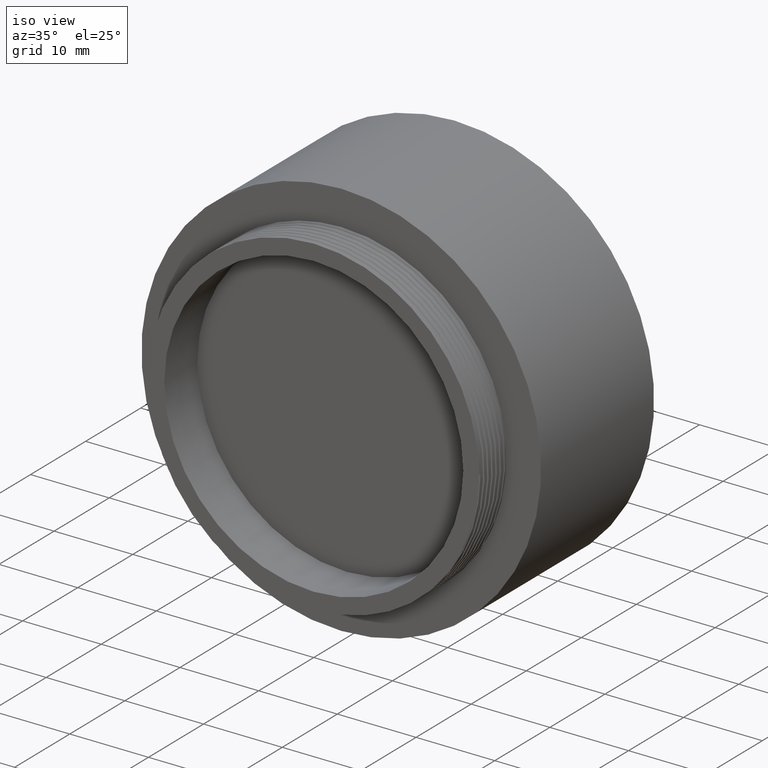
[diagram: clean part render]
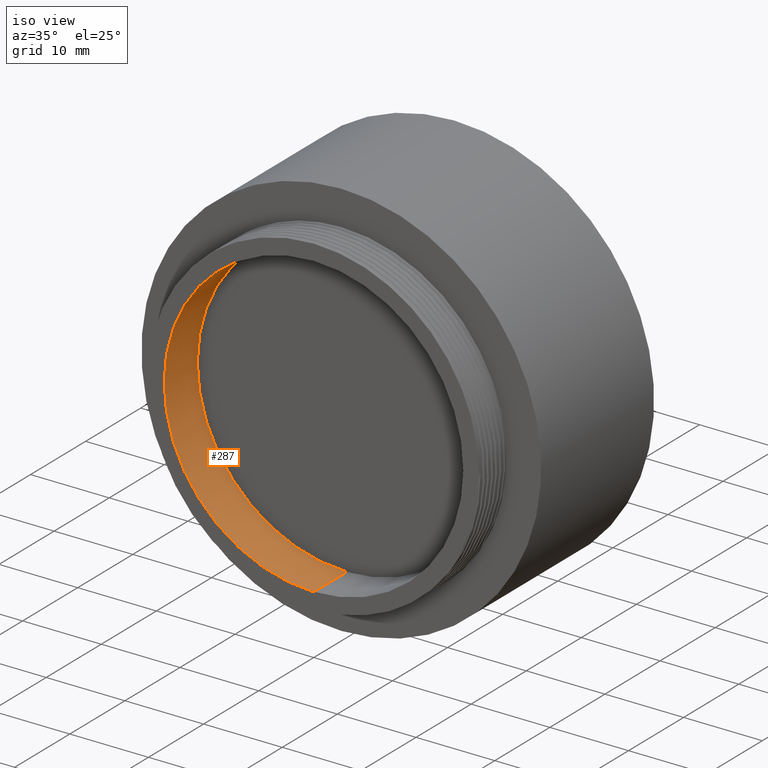
[diagram: same view with one face highlighted and labeled with its STEP entity id]
A machine part, iso view. The second image highlights one B-rep face of the part: STEP entity #287.
In plain terms, the highlighted cylindrical surface (partial cylindrical patch) has radius 19 mm, axis along (-0, -1, -0).
Its self-contained STEP definition (entity closure, byte-faithful):
#123 = EDGE_LOOP ( 'NONE', ( #6585, #6064, #4765, #1011 ) ) ;
#183 = FACE_OUTER_BOUND ( 'NONE', #123, .T. ) ;
#224 = CARTESIAN_POINT ( 'NONE',  ( 0.000000000000000000, 6.000000000000000000, -19.00000000000000000 ) ) ;
#287 = ADVANCED_FACE ( 'NONE', ( #183 ), #4665, .F. ) ;
#336 = EDGE_CURVE ( 'NONE', #5151, #6664, #684, .T. ) ;
#528 = CARTESIAN_POINT ( 'NONE',  ( 2.326828918379970970E-15, 0.000000000000000000, 19.00000000000000000 ) ) ;
#592 = DIRECTION ( 'NONE',  ( -0.000000000000000000, -1.000000000000000000, -0.000000000000000000 ) ) ;
#643 = CARTESIAN_POINT ( 'NONE',  ( 0.000000000000000000, 5.817072295949926440E-16, -19.00000000000000000 ) ) ;
#662 = DIRECTION ( 'NONE',  ( 0.000000000000000000, 0.000000000000000000, -1.000000000000000000 ) ) ;
#664 = DIRECTION ( 'NONE',  ( -0.000000000000000000, -1.000000000000000000, -0.000000000000000000 ) ) ;
#684 = LINE ( 'NONE', #2750, #6417 ) ;
#1011 = ORIENTED_EDGE ( 'NONE', *, *, #336, .F. ) ;
#1036 = AXIS2_PLACEMENT_3D ( 'NONE', #6229, #1177, #4226 ) ;
#1146 = LINE ( 'NONE', #528, #2003 ) ;
#1177 = DIRECTION ( 'NONE',  ( -0.000000000000000000, -1.000000000000000000, -0.000000000000000000 ) ) ;
#1390 = VERTEX_POINT ( 'NONE', #3403 ) ;
#1460 = AXIS2_PLACEMENT_3D ( 'NONE', #6240, #664, #5727 ) ;
#1781 = EDGE_CURVE ( 'NONE', #4124, #1390, #1146, .T. ) ;
#2003 = VECTOR ( 'NONE', #592, 1000.000000000000000 ) ;
#2750 = CARTESIAN_POINT ( 'NONE',  ( 0.000000000000000000, 0.000000000000000000, -19.00000000000000000 ) ) ;
#2970 = CIRCLE ( 'NONE', #1460, 19.00000000000000000 ) ;
#3287 = CIRCLE ( 'NONE', #4032, 19.00000000000000000 ) ;
#3403 = CARTESIAN_POINT ( 'NONE',  ( 2.326828918379970970E-15, 5.817072295949926440E-16, 19.00000000000000000 ) ) ;
#4032 = AXIS2_PLACEMENT_3D ( 'NONE', #4167, #4233, #662 ) ;
#4066 = CARTESIAN_POINT ( 'NONE',  ( 2.326828918379970970E-15, 6.000000000000000000, 19.00000000000000000 ) ) ;
#4124 = VERTEX_POINT ( 'NONE', #4066 ) ;
#4167 = CARTESIAN_POINT ( 'NONE',  ( 0.000000000000000000, 5.817072295949926440E-16, 0.000000000000000000 ) ) ;
#4226 = DIRECTION ( 'NONE',  ( 0.000000000000000000, 0.000000000000000000, -1.000000000000000000 ) ) ;
#4233 = DIRECTION ( 'NONE',  ( -0.000000000000000000, -1.000000000000000000, -0.000000000000000000 ) ) ;
#4497 = EDGE_CURVE ( 'NONE', #1390, #6664, #3287, .T. ) ;
#4665 = CYLINDRICAL_SURFACE ( 'NONE', #1036, 19.00000000000000000 ) ;
#4765 = ORIENTED_EDGE ( 'NONE', *, *, #4497, .T. ) ;
#5072 = EDGE_CURVE ( 'NONE', #4124, #5151, #2970, .T. ) ;
#5151 = VERTEX_POINT ( 'NONE', #224 ) ;
#5727 = DIRECTION ( 'NONE',  ( 0.000000000000000000, 0.000000000000000000, -1.000000000000000000 ) ) ;
#6064 = ORIENTED_EDGE ( 'NONE', *, *, #1781, .T. ) ;
#6229 = CARTESIAN_POINT ( 'NONE',  ( 0.000000000000000000, 0.000000000000000000, 0.000000000000000000 ) ) ;
#6240 = CARTESIAN_POINT ( 'NONE',  ( 0.000000000000000000, 6.000000000000000000, 0.000000000000000000 ) ) ;
#6259 = DIRECTION ( 'NONE',  ( -0.000000000000000000, -1.000000000000000000, -0.000000000000000000 ) ) ;
#6417 = VECTOR ( 'NONE', #6259, 1000.000000000000000 ) ;
#6585 = ORIENTED_EDGE ( 'NONE', *, *, #5072, .F. ) ;
#6664 = VERTEX_POINT ( 'NONE', #643 ) ;